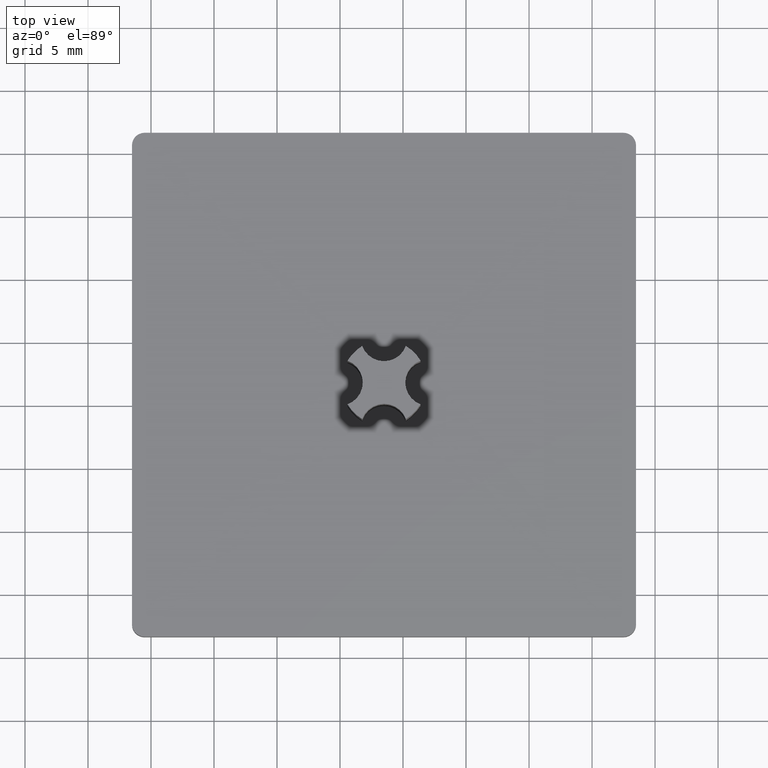
[diagram: clean part render]
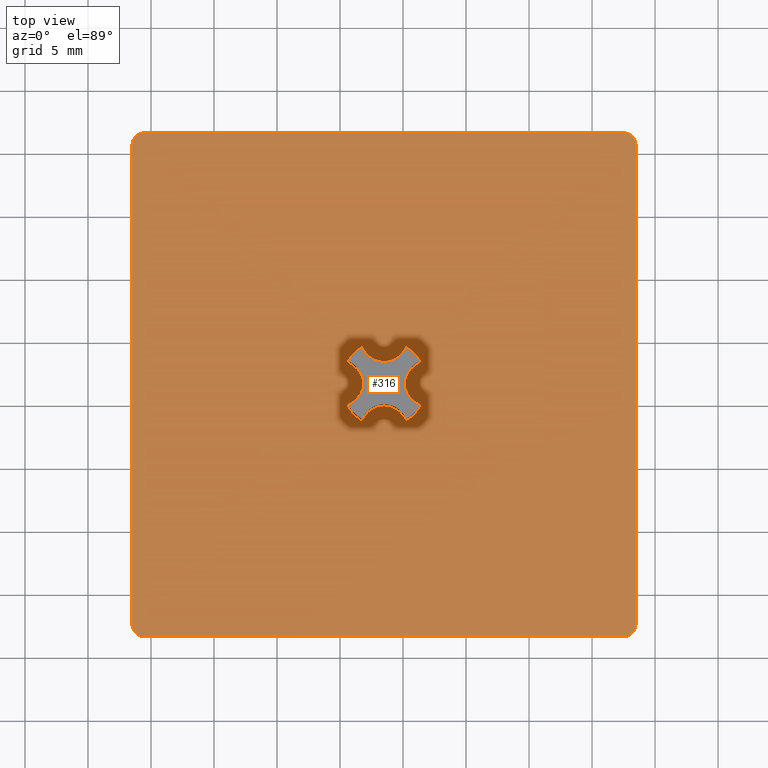
[diagram: same view with one face highlighted and labeled with its STEP entity id]
A machine part, top view. The second image highlights one B-rep face of the part: STEP entity #316.
In plain terms, the highlighted planar face has unit normal (0, 0, 1).
Its self-contained STEP definition (entity closure, byte-faithful):
#18=CARTESIAN_POINT('',(-24.822161560216632,-8.350442477875610,3.0));
#19=VERTEX_POINT('',#18);
#26=CARTESIAN_POINT('',(-23.614734513273326,-6.615622602499498,3.0));
#27=VERTEX_POINT('',#26);
#28=CARTESIAN_POINT('',(-22.972161560216630,-8.350442477875610,3.0));
#29=DIRECTION('',(0.0,0.0,-1.0));
#30=DIRECTION('',(0.0,1.0,0.0));
#31=AXIS2_PLACEMENT_3D('',#28,#29,#30);
#32=CIRCLE('',#31,1.850000000000001);
#33=EDGE_CURVE('',#19,#27,#32,.T.);
#49=CARTESIAN_POINT('',(-46.509734513273330,10.649557522124383,3.0));
#50=VERTEX_POINT('',#49);
#51=CARTESIAN_POINT('',(-46.509734513273330,-27.350442477875610,3.0));
#52=VERTEX_POINT('',#51);
#53=CARTESIAN_POINT('',(-46.509734513273330,10.649557522124383,3.0));
#54=DIRECTION('',(0.0,-1.0,0.0));
#55=VECTOR('',#54,37.999999999999993);
#56=LINE('',#53,#55);
#57=EDGE_CURVE('',#50,#52,#56,.T.);
#99=CARTESIAN_POINT('',(-7.509734513273324,-28.350442477875610,3.0));
#100=VERTEX_POINT('',#99);
#107=CARTESIAN_POINT('',(-45.509734513273301,-28.350442477875610,3.0));
#108=VERTEX_POINT('',#107);
#109=CARTESIAN_POINT('',(-45.509734513273301,-28.350442477875610,3.0));
#110=DIRECTION('',(1.0,0.0,0.0));
#111=VECTOR('',#110,37.999999999999979);
#112=LINE('',#109,#111);
#113=EDGE_CURVE('',#108,#100,#112,.T.);
#129=CARTESIAN_POINT('',(-6.509734513273321,-27.350442477875610,3.0));
#130=VERTEX_POINT('',#129);
#131=CARTESIAN_POINT('',(-6.509734513273321,10.649557522124383,3.0));
#132=VERTEX_POINT('',#131);
#133=CARTESIAN_POINT('',(-6.509734513273321,-27.350442477875610,3.0));
#134=DIRECTION('',(0.0,1.0,0.0));
#135=VECTOR('',#134,37.999999999999993);
#136=LINE('',#133,#135);
#137=EDGE_CURVE('',#130,#132,#136,.T.);
#169=CARTESIAN_POINT('',(-7.509734513273320,11.649557522124383,3.0));
#170=VERTEX_POINT('',#169);
#171=CARTESIAN_POINT('',(-45.509734513273330,11.649557522124383,3.0));
#172=VERTEX_POINT('',#171);
#173=CARTESIAN_POINT('',(-7.509734513273320,11.649557522124383,3.0));
#174=DIRECTION('',(-1.0,0.0,0.0));
#175=VECTOR('',#174,38.000000000000007);
#176=LINE('',#173,#175);
#177=EDGE_CURVE('',#170,#172,#176,.T.);
#204=CARTESIAN_POINT('',(-48.509734513273330,-30.350442477875610,3.0));
#205=DIRECTION('',(0.0,0.0,1.0));
#206=DIRECTION('',(1.0,0.0,0.0));
#207=AXIS2_PLACEMENT_3D('',#204,#205,#206);
#208=PLANE('',#207);
#209=ORIENTED_EDGE('',*,*,#113,.T.);
#210=CARTESIAN_POINT('',(-7.509734513273320,-27.350442477875610,3.0));
#211=DIRECTION('',(0.0,0.0,1.0));
#212=DIRECTION('',(1.0,0.0,0.0));
#213=AXIS2_PLACEMENT_3D('',#210,#211,#212);
#214=CIRCLE('',#213,1.0);
#215=EDGE_CURVE('',#100,#130,#214,.T.);
#216=ORIENTED_EDGE('',*,*,#215,.T.);
#217=ORIENTED_EDGE('',*,*,#137,.T.);
#218=CARTESIAN_POINT('',(-7.509734513273320,10.649557522124383,3.0));
#219=DIRECTION('',(0.0,0.0,1.0));
#220=DIRECTION('',(1.0,0.0,0.0));
#221=AXIS2_PLACEMENT_3D('',#218,#219,#220);
#222=CIRCLE('',#221,1.0);
#223=EDGE_CURVE('',#132,#170,#222,.T.);
#224=ORIENTED_EDGE('',*,*,#223,.T.);
#225=ORIENTED_EDGE('',*,*,#177,.T.);
#226=CARTESIAN_POINT('',(-45.509734513273330,10.649557522124383,3.0));
#227=DIRECTION('',(0.0,0.0,1.0));
#228=DIRECTION('',(1.0,0.0,0.0));
#229=AXIS2_PLACEMENT_3D('',#226,#227,#228);
#230=CIRCLE('',#229,1.000000000000001);
#231=EDGE_CURVE('',#172,#50,#230,.T.);
#232=ORIENTED_EDGE('',*,*,#231,.T.);
#233=ORIENTED_EDGE('',*,*,#57,.T.);
#234=CARTESIAN_POINT('',(-45.509734513273301,-27.350442477875610,3.0));
#235=DIRECTION('',(0.0,0.0,1.0));
#236=DIRECTION('',(1.0,0.0,0.0));
#237=AXIS2_PLACEMENT_3D('',#234,#235,#236);
#238=CIRCLE('',#237,1.000000000000001);
#239=EDGE_CURVE('',#52,#108,#238,.T.);
#240=ORIENTED_EDGE('',*,*,#239,.T.);
#241=EDGE_LOOP('',(#209,#216,#217,#224,#225,#232,#233,#240));
#242=FACE_OUTER_BOUND('',#241,.T.);
#243=CARTESIAN_POINT('',(-24.774914637897208,-5.455442477875609,3.0));
#244=VERTEX_POINT('',#243);
#245=CARTESIAN_POINT('',(-26.509734513273326,-8.350442477875610,3.0));
#246=DIRECTION('',(0.0,0.0,1.0));
#247=DIRECTION('',(0.0,1.0,0.0));
#248=AXIS2_PLACEMENT_3D('',#245,#246,#247);
#249=CIRCLE('',#248,3.374999999999998);
#250=EDGE_CURVE('',#27,#244,#249,.T.);
#251=ORIENTED_EDGE('',*,*,#250,.F.);
#252=ORIENTED_EDGE('',*,*,#33,.F.);
#253=CARTESIAN_POINT('',(-23.614734513273326,-10.085262353251728,3.0));
#254=VERTEX_POINT('',#253);
#255=CARTESIAN_POINT('',(-22.972161560216630,-8.350442477875610,3.0));
#256=DIRECTION('',(0.0,0.0,-1.0));
#257=DIRECTION('',(0.0,1.0,0.0));
#258=AXIS2_PLACEMENT_3D('',#255,#256,#257);
#259=CIRCLE('',#258,1.850000000000001);
#260=EDGE_CURVE('',#254,#19,#259,.T.);
#261=ORIENTED_EDGE('',*,*,#260,.F.);
#262=CARTESIAN_POINT('',(-24.774914637897208,-11.245442477875608,3.0));
#263=VERTEX_POINT('',#262);
#264=CARTESIAN_POINT('',(-26.509734513273326,-8.350442477875610,3.0));
#265=DIRECTION('',(0.0,0.0,1.0));
#266=DIRECTION('',(0.0,1.0,0.0));
#267=AXIS2_PLACEMENT_3D('',#264,#265,#266);
#268=CIRCLE('',#267,3.374999999999999);
#269=EDGE_CURVE('',#263,#254,#268,.T.);
#270=ORIENTED_EDGE('',*,*,#269,.F.);
#271=CARTESIAN_POINT('',(-28.244554388649441,-11.245442477875613,3.0));
#272=VERTEX_POINT('',#271);
#273=CARTESIAN_POINT('',(-26.509734513273326,-11.888015430932322,3.0));
#274=DIRECTION('',(0.0,0.0,-1.0));
#275=DIRECTION('',(0.0,-1.0,0.0));
#276=AXIS2_PLACEMENT_3D('',#273,#274,#275);
#277=CIRCLE('',#276,1.850000000000004);
#278=EDGE_CURVE('',#272,#263,#277,.T.);
#279=ORIENTED_EDGE('',*,*,#278,.F.);
#280=CARTESIAN_POINT('',(-29.404734522686766,-10.085262337542920,3.0));
#281=VERTEX_POINT('',#280);
#282=CARTESIAN_POINT('',(-26.509734513273326,-8.350442477875610,3.0));
#283=DIRECTION('',(0.0,0.0,1.0));
#284=DIRECTION('',(0.0,1.0,0.0));
#285=AXIS2_PLACEMENT_3D('',#282,#283,#284);
#286=CIRCLE('',#285,3.375000000000001);
#287=EDGE_CURVE('',#281,#272,#286,.T.);
#288=ORIENTED_EDGE('',*,*,#287,.F.);
#289=CARTESIAN_POINT('',(-29.404734522686766,-6.615622618208302,3.0));
#290=VERTEX_POINT('',#289);
#291=CARTESIAN_POINT('',(-30.047307518154145,-8.350442477875610,3.0));
#292=DIRECTION('',(0.0,0.0,-1.0));
#293=DIRECTION('',(0.0,1.0,0.0));
#294=AXIS2_PLACEMENT_3D('',#291,#292,#293);
#295=CIRCLE('',#294,1.850000000000003);
#296=EDGE_CURVE('',#290,#281,#295,.T.);
#297=ORIENTED_EDGE('',*,*,#296,.F.);
#298=CARTESIAN_POINT('',(-28.244554388649441,-5.455442477875613,3.0));
#299=VERTEX_POINT('',#298);
#300=CARTESIAN_POINT('',(-26.509734513273326,-8.350442477875610,3.0));
#301=DIRECTION('',(0.0,0.0,1.0));
#302=DIRECTION('',(0.0,1.0,0.0));
#303=AXIS2_PLACEMENT_3D('',#300,#301,#302);
#304=CIRCLE('',#303,3.374999999999999);
#305=EDGE_CURVE('',#299,#290,#304,.T.);
#306=ORIENTED_EDGE('',*,*,#305,.F.);
#307=CARTESIAN_POINT('',(-26.509734513273326,-4.812869524818913,3.0));
#308=DIRECTION('',(0.0,0.0,-1.0));
#309=DIRECTION('',(0.0,1.0,0.0));
#310=AXIS2_PLACEMENT_3D('',#307,#308,#309);
#311=CIRCLE('',#310,1.850000000000000);
#312=EDGE_CURVE('',#244,#299,#311,.T.);
#313=ORIENTED_EDGE('',*,*,#312,.F.);
#314=EDGE_LOOP('',(#251,#252,#261,#270,#279,#288,#297,#306,#313));
#315=FACE_BOUND('',#314,.T.);
#316=ADVANCED_FACE('',(#242,#315),#208,.T.);